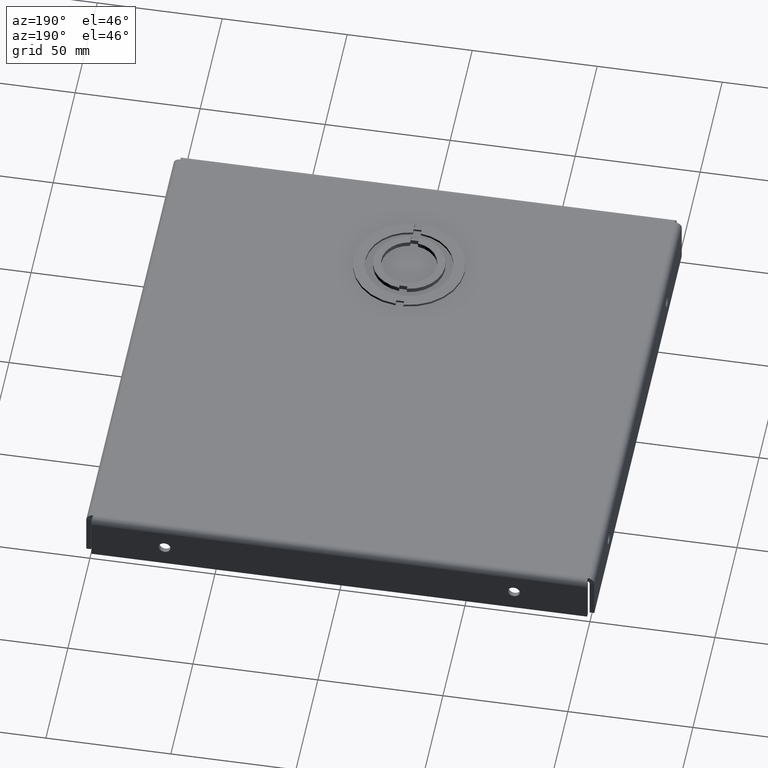
[diagram: clean part render]
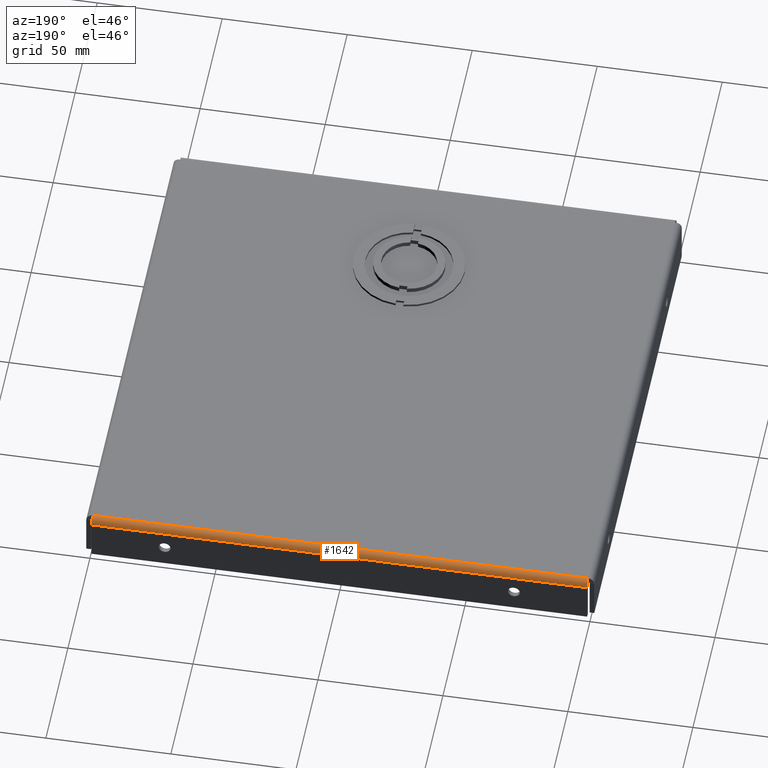
[diagram: same view with one face highlighted and labeled with its STEP entity id]
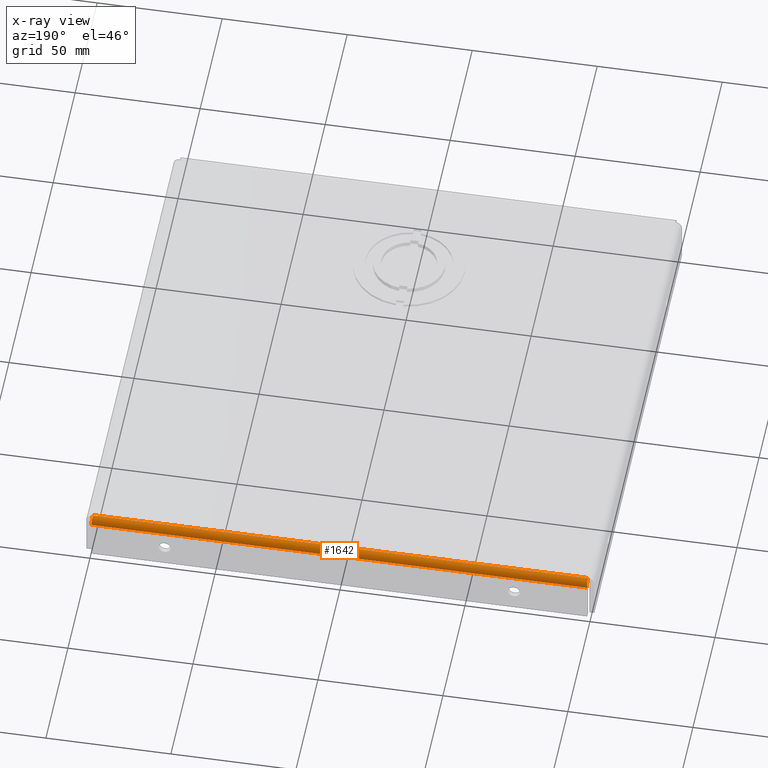
[diagram: x-ray of the same camera — body ghosted, the highlighted face saturated]
A machine part, auxiliary view. The second image highlights one B-rep face of the part: STEP entity #1642.
The next image is the same camera in x-ray: the body ghosted, the highlighted face saturated — about 0% of this face is hidden behind the body in this view.
In plain terms, the highlighted cylindrical surface (edge-blend (fillet) strip) has radius 2.6733 mm, axis along (-1, 0, 0).
Its self-contained STEP definition (entity closure, byte-faithful):
#25=B_SPLINE_CURVE_WITH_KNOTS('',3,(#2467,#2468,#2469,#2470,#2471,#2472,
#2473),.UNSPECIFIED.,.F.,.F.,(4,3,4),(0.,0.673198425769242,1.57079632679489),
 .UNSPECIFIED.);
#26=B_SPLINE_CURVE_WITH_KNOTS('',3,(#2496,#2497,#2498,#2499,#2500,#2501,
#2502),.UNSPECIFIED.,.F.,.F.,(4,3,4),(0.,0.897597901025654,1.57079632679489),
 .UNSPECIFIED.);
#113=CYLINDRICAL_SURFACE('',#1758,0.10525);
#162=FACE_OUTER_BOUND('',#270,.T.);
#270=EDGE_LOOP('',(#1202,#1203,#1204,#1205));
#421=LINE('',#2427,#592);
#434=LINE('',#2513,#605);
#592=VECTOR('',#1962,7.80780582617584);
#605=VECTOR('',#1993,7.7895);
#759=VERTEX_POINT('',#2425);
#760=VERTEX_POINT('',#2426);
#767=VERTEX_POINT('',#2466);
#768=VERTEX_POINT('',#2495);
#915=EDGE_CURVE('',#759,#760,#421,.T.);
#926=EDGE_CURVE('',#767,#759,#25,.T.);
#928=EDGE_CURVE('',#760,#768,#26,.T.);
#934=EDGE_CURVE('',#768,#767,#434,.T.);
#1202=ORIENTED_EDGE('',*,*,#915,.F.);
#1203=ORIENTED_EDGE('',*,*,#926,.F.);
#1204=ORIENTED_EDGE('',*,*,#934,.F.);
#1205=ORIENTED_EDGE('',*,*,#928,.F.);
#1642=ADVANCED_FACE('',(#162),#113,.T.);
#1758=AXIS2_PLACEMENT_3D('',#2512,#1991,#1992);
#1962=DIRECTION('',(1.,4.77978227227849E-19,2.57644740436363E-33));
#1991=DIRECTION('center_axis',(-1.,0.,0.));
#1992=DIRECTION('ref_axis',(0.,0.,1.));
#1993=DIRECTION('',(-1.,0.,0.));
#2425=CARTESIAN_POINT('',(-3.90390291308792,4.,-0.0312499999999995));
#2426=CARTESIAN_POINT('',(3.90390291308792,4.,-0.0312499999999995));
#2427=CARTESIAN_POINT('',(-4.69891950010196E-16,4.,-0.0312499999999995));
#2466=CARTESIAN_POINT('',(-3.89475,3.89475,0.074));
#2467=CARTESIAN_POINT('Ctrl Pts',(-3.89475,3.89475,0.074));
#2468=CARTESIAN_POINT('Ctrl Pts',(-3.89605755901256,3.91836804477074,0.074));
#2469=CARTESIAN_POINT('Ctrl Pts',(-3.89736511802512,3.9420155728515,0.0657425615524679));
#2470=CARTESIAN_POINT('Ctrl Pts',(-3.89867267703768,3.96038741557862,0.0510153057997356));
#2471=CARTESIAN_POINT('Ctrl Pts',(-3.90041608905443,3.98488320588144,0.0313789647960926));
#2472=CARTESIAN_POINT('Ctrl Pts',(-3.90215950107117,4.,0.000240726360982572));
#2473=CARTESIAN_POINT('Ctrl Pts',(-3.90390291308792,4.,-0.0312500000000009));
#2495=CARTESIAN_POINT('',(3.89475,3.89475,0.074));
#2496=CARTESIAN_POINT('Ctrl Pts',(3.90390291308792,4.,-0.0312499999999997));
#2497=CARTESIAN_POINT('Ctrl Pts',(3.90215950107117,4.,0.000240726360983856));
#2498=CARTESIAN_POINT('Ctrl Pts',(3.90041608905443,3.98488320588144,0.0313789647960935));
#2499=CARTESIAN_POINT('Ctrl Pts',(3.89867267703768,3.96038741557862,0.0510153057997362));
#2500=CARTESIAN_POINT('Ctrl Pts',(3.89736511802512,3.9420155728515,0.0657425615524682));
#2501=CARTESIAN_POINT('Ctrl Pts',(3.89605755901256,3.91836804477074,0.074));
#2502=CARTESIAN_POINT('Ctrl Pts',(3.89475,3.89475,0.074));
#2512=CARTESIAN_POINT('Origin',(-6.99353086378051E-16,3.89475,-0.0312500000000002));
#2513=CARTESIAN_POINT('',(1.947375,3.89475,0.074));